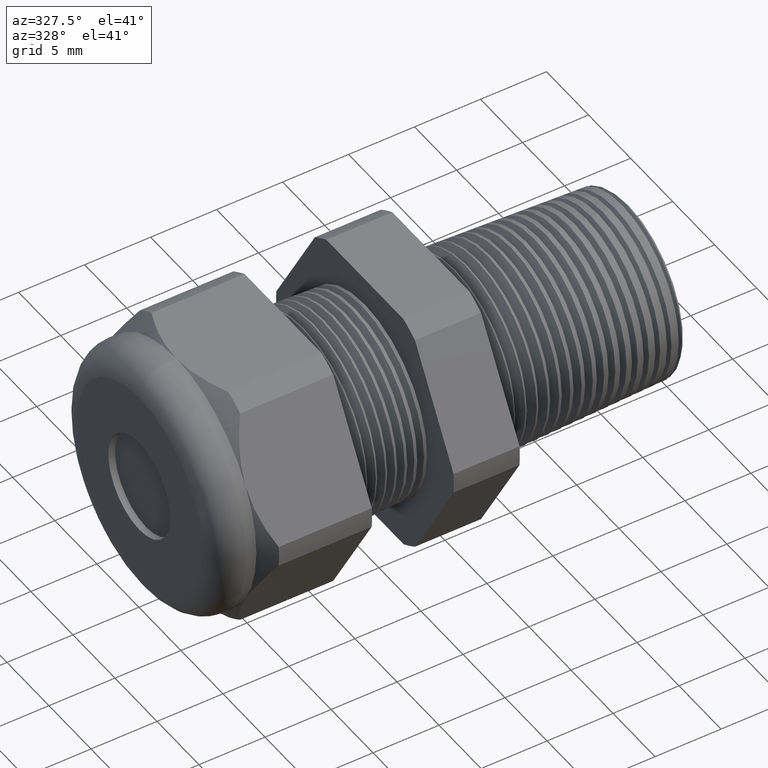
[diagram: clean part render]
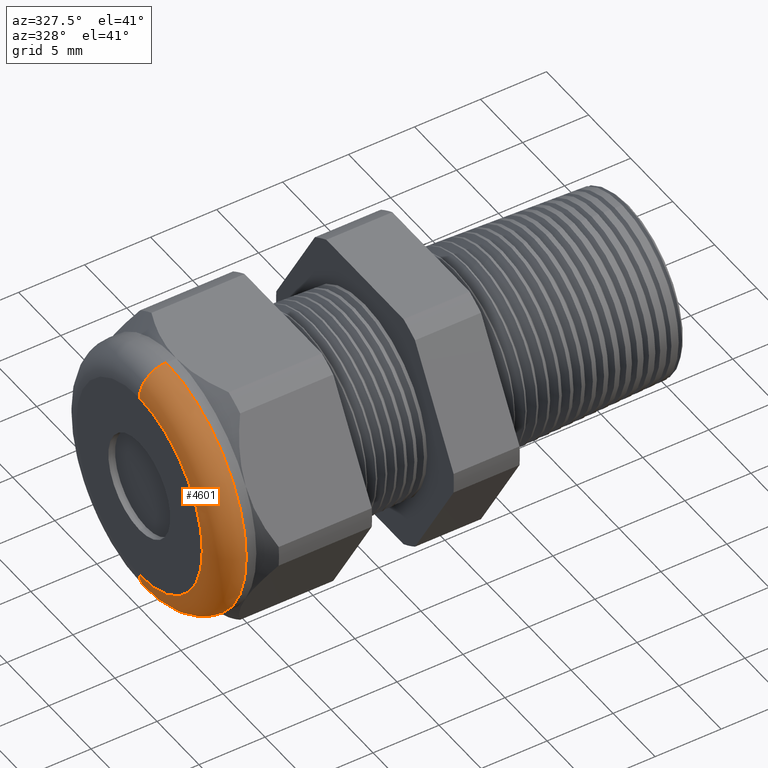
[diagram: same view with one face highlighted and labeled with its STEP entity id]
A machine part, auxiliary view. The second image highlights one B-rep face of the part: STEP entity #4601.
In plain terms, the highlighted toroidal blend (fillet) surface has major radius 7.493 mm and minor (blend) radius 2.032 mm.
Its self-contained STEP definition (entity closure, byte-faithful):
#2506 = DIRECTION ( 'NONE',  ( 0.0000000000000000000, 0.0000000000000000000, 1.000000000000000000 ) ) ;
#2507 = DIRECTION ( 'NONE',  ( -1.000000000000000000, 0.0000000000000000000, 0.0000000000000000000 ) ) ;
#2508 = AXIS2_PLACEMENT_3D ( 'NONE', #2514, #2507, #2506 ) ;
#2509 = TOROIDAL_SURFACE ( 'NONE', #2508, 0.2950000000000001000, 0.08000000000000000200 ) ;
#2510 = FACE_OUTER_BOUND ( 'NONE', #4602, .T. ) ;
#2514 = CARTESIAN_POINT ( 'NONE',  ( -1.100000000000000100, 0.0000000000000000000, 0.0000000000000000000 ) ) ;
#2736 = CARTESIAN_POINT ( 'NONE',  ( -1.100000000000000100, 4.592425496802576100E-017, 0.3750000000000001100 ) ) ;
#2737 = CARTESIAN_POINT ( 'NONE',  ( -1.179999999999999900, 4.102566777143634000E-017, -0.2950000000000001000 ) ) ;
#2738 = CARTESIAN_POINT ( 'NONE',  ( -1.179999999999999900, 0.0000000000000000000, 0.2950000000000001000 ) ) ;
#2744 = DIRECTION ( 'NONE',  ( 0.0000000000000000000, -1.224646799147353500E-016, 1.000000000000000000 ) ) ;
#2745 = DIRECTION ( 'NONE',  ( 0.0000000000000000000, 1.000000000000000000, 1.224646799147353200E-016 ) ) ;
#2746 = CARTESIAN_POINT ( 'NONE',  ( -1.100000000000000100, 3.612708057484693200E-017, -0.2950000000000001000 ) ) ;
#2747 = AXIS2_PLACEMENT_3D ( 'NONE', #2746, #2745, #2744 ) ;
#2752 = CIRCLE ( 'NONE', #2747, 0.08000000000000000200 ) ;
#2785 = DIRECTION ( 'NONE',  ( 0.0000000000000000000, 0.0000000000000000000, -1.000000000000000000 ) ) ;
#2786 = DIRECTION ( 'NONE',  ( 0.0000000000000000000, -1.000000000000000000, 0.0000000000000000000 ) ) ;
#2787 = CARTESIAN_POINT ( 'NONE',  ( -1.100000000000000100, 0.0000000000000000000, 0.2950000000000001000 ) ) ;
#2788 = AXIS2_PLACEMENT_3D ( 'NONE', #2787, #2786, #2785 ) ;
#2789 = CIRCLE ( 'NONE', #2788, 0.08000000000000000200 ) ;
#3159 = EDGE_CURVE ( 'NONE', #4788, #3207, #5090, .T. ) ;
#3165 = EDGE_CURVE ( 'NONE', #4787, #4786, #5085, .T. ) ;
#3207 = VERTEX_POINT ( 'NONE', #5138 ) ;
#4601 = ADVANCED_FACE ( 'NONE', ( #2510 ), #2509, .T. ) ;
#4602 = EDGE_LOOP ( 'NONE', ( #4603, #4604, #4605, #4606 ) ) ;
#4603 = ORIENTED_EDGE ( 'NONE', *, *, #4781, .F. ) ;
#4604 = ORIENTED_EDGE ( 'NONE', *, *, #3159, .F. ) ;
#4605 = ORIENTED_EDGE ( 'NONE', *, *, #4798, .T. ) ;
#4606 = ORIENTED_EDGE ( 'NONE', *, *, #3165, .F. ) ;
#4781 = EDGE_CURVE ( 'NONE', #3207, #4787, #2752, .T. ) ;
#4786 = VERTEX_POINT ( 'NONE', #2738 ) ;
#4787 = VERTEX_POINT ( 'NONE', #2737 ) ;
#4788 = VERTEX_POINT ( 'NONE', #2736 ) ;
#4798 = EDGE_CURVE ( 'NONE', #4788, #4786, #2789, .T. ) ;
#5081 = DIRECTION ( 'NONE',  ( 0.0000000000000000000, 0.0000000000000000000, 1.000000000000000000 ) ) ;
#5082 = DIRECTION ( 'NONE',  ( -1.000000000000000000, 0.0000000000000000000, 0.0000000000000000000 ) ) ;
#5083 = CARTESIAN_POINT ( 'NONE',  ( -1.179999999999999900, 0.0000000000000000000, 0.0000000000000000000 ) ) ;
#5084 = AXIS2_PLACEMENT_3D ( 'NONE', #5083, #5082, #5081 ) ;
#5085 = CIRCLE ( 'NONE', #5084, 0.2950000000000001000 ) ;
#5086 = DIRECTION ( 'NONE',  ( 0.0000000000000000000, 0.0000000000000000000, 1.000000000000000000 ) ) ;
#5087 = DIRECTION ( 'NONE',  ( 1.000000000000000000, 0.0000000000000000000, 0.0000000000000000000 ) ) ;
#5088 = CARTESIAN_POINT ( 'NONE',  ( -1.100000000000000100, 0.0000000000000000000, 0.0000000000000000000 ) ) ;
#5089 = AXIS2_PLACEMENT_3D ( 'NONE', #5088, #5087, #5086 ) ;
#5090 = CIRCLE ( 'NONE', #5089, 0.3750000000000001100 ) ;
#5138 = CARTESIAN_POINT ( 'NONE',  ( -1.100000000000000100, 0.0000000000000000000, -0.3750000000000001100 ) ) ;